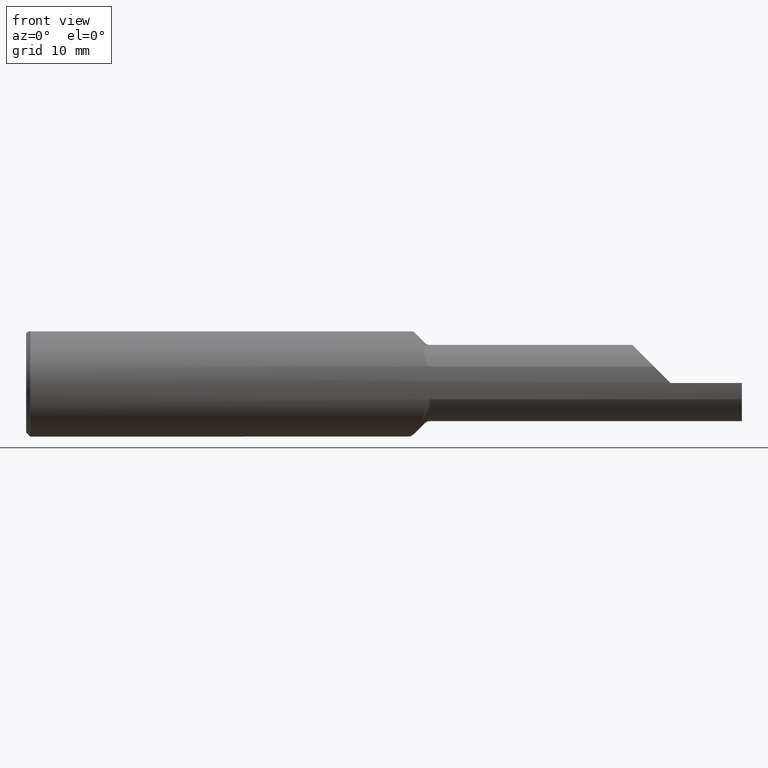
[diagram: clean part render]
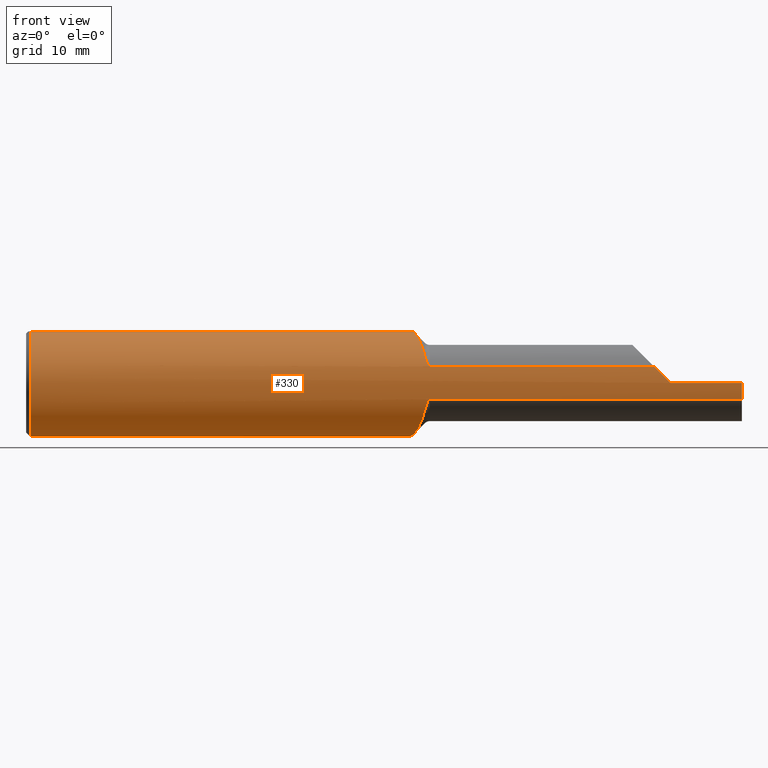
[diagram: same view with one face highlighted and labeled with its STEP entity id]
A machine part, front view. The second image highlights one B-rep face of the part: STEP entity #330.
In plain terms, the highlighted cylindrical surface (partial cylindrical patch) has radius 4.7587 mm, axis along (-1, -0, -0).
Its self-contained STEP definition (entity closure, byte-faithful):
#3 = CARTESIAN_POINT ( 'NONE',  ( 2.230726762412658548, -0.1872820046412290718, 0.01992323758734154335 ) ) ;
#7 = DIRECTION ( 'NONE',  ( -1.000000000000000000, -0.000000000000000000, -0.000000000000000000 ) ) ;
#12 = DIRECTION ( 'NONE',  ( 1.000000000000000000, 0.000000000000000000, 0.000000000000000000 ) ) ;
#14 = CARTESIAN_POINT ( 'NONE',  ( 1.290339301653355086, 0.1746239680236502112, -0.06904456622799003129 ) ) ;
#19 = CARTESIAN_POINT ( 'NONE',  ( 1.889999999999999680, -0.1783697086546703892, -0.05730854678359931925 ) ) ;
#23 = CARTESIAN_POINT ( 'NONE',  ( 2.500000000000000000, 0.000000000000000000, 0.000000000000000000 ) ) ;
#27 = ORIENTED_EDGE ( 'NONE', *, *, #675, .F. ) ;
#28 = EDGE_CURVE ( 'NONE', #179, #42, #1054, .T. ) ;
#32 = CARTESIAN_POINT ( 'NONE',  ( 1.315888065801316120, 0.07390163537251745463, 0.1726011362085435874 ) ) ;
#37 = CARTESIAN_POINT ( 'NONE',  ( 2.250000000000000000, -0.1873499999999999610, -6.429183357567478880E-17 ) ) ;
#42 = VERTEX_POINT ( 'NONE', #381 ) ;
#52 = B_SPLINE_CURVE_WITH_KNOTS ( 'NONE', 3,
 ( #636, #362, #375, #124, #869, #628, #117, #975, #624, #530 ),
 .UNSPECIFIED., .F., .F.,
 ( 4, 2, 2, 2, 4 ),
 ( 0.008839285664186636790, 0.009723419508071005912, 0.01060755335195537330, 0.01149168719583974069, 0.01237582103972410981 ),
 .UNSPECIFIED. ) ;
#54 = CARTESIAN_POINT ( 'NONE',  ( 1.352489247483494417, -0.05073361804563106953, 0.1803500000000000381 ) ) ;
#60 = DIRECTION ( 'NONE',  ( 0.000000000000000000, 0.000000000000000000, -1.000000000000000000 ) ) ;
#72 = DIRECTION ( 'NONE',  ( -1.000000000000000000, -0.000000000000000000, -0.000000000000000000 ) ) ;
#79 = CARTESIAN_POINT ( 'NONE',  ( 0.01500000000000079568, 0.05073361804563106953, 0.1803500000000000381 ) ) ;
#81 = CARTESIAN_POINT ( 'NONE',  ( 0.01500000000000079568, 0.000000000000000000, -0.1873499999999999888 ) ) ;
#82 = ORIENTED_EDGE ( 'NONE', *, *, #721, .F. ) ;
#85 = CARTESIAN_POINT ( 'NONE',  ( 1.403568594541375392, -0.1762593147278524730, 0.06352779236237585114 ) ) ;
#87 = CARTESIAN_POINT ( 'NONE',  ( 2.193341453216400616, -0.1783697086546704724, 0.05730854678359917354 ) ) ;
#90 = ORIENTED_EDGE ( 'NONE', *, *, #214, .T. ) ;
#91 = CARTESIAN_POINT ( 'NONE',  ( 1.409353365409087733, -0.1783697086546704169, 0.05730854678359929844 ) ) ;
#92 = CARTESIAN_POINT ( 'NONE',  ( 2.500000000000000000, 0.000000000000000000, 0.000000000000000000 ) ) ;
#97 = DIRECTION ( 'NONE',  ( 0.000000000000000000, 0.000000000000000000, 1.000000000000000000 ) ) ;
#103 = CARTESIAN_POINT ( 'NONE',  ( 1.287801414367354846, 0.1852400666705823484, 0.03079028734492997646 ) ) ;
#105 = AXIS2_PLACEMENT_3D ( 'NONE', #23, #12, #345 ) ;
#117 = CARTESIAN_POINT ( 'NONE',  ( 1.368767343164416062, -0.09892104215541590306, -0.1594977428790702589 ) ) ;
#124 = CARTESIAN_POINT ( 'NONE',  ( 1.381727261142595697, -0.1339314736004380280, -0.1314911332688375734 ) ) ;
#128 = CARTESIAN_POINT ( 'NONE',  ( 2.250000000000000000, -0.1873488724278853934, 0.0006500000000000633960 ) ) ;
#137 = CIRCLE ( 'NONE', #576, 0.1873499999999999888 ) ;
#145 = CARTESIAN_POINT ( 'NONE',  ( 1.406263810976655870, -0.1776167352753859063, -0.05960650000845370278 ) ) ;
#155 = CARTESIAN_POINT ( 'NONE',  ( 1.399768993697486419, -0.1730593490829001324, -0.07186319716290831550 ) ) ;
#167 = VERTEX_POINT ( 'NONE', #994 ) ;
#173 = EDGE_CURVE ( 'NONE', #279, #583, #137, .T. ) ;
#174 = AXIS2_PLACEMENT_3D ( 'NONE', #234, #1058, #661 ) ;
#176 = VECTOR ( 'NONE', #72, 39.37007874015748143 ) ;
#179 = VERTEX_POINT ( 'NONE', #990 ) ;
#181 = CARTESIAN_POINT ( 'NONE',  ( 1.307730347949919159, 0.1048826378083086847, -0.1553640687897693551 ) ) ;
#186 = DIRECTION ( 'NONE',  ( -1.000000000000000000, -0.000000000000000000, -0.000000000000000000 ) ) ;
#187 = CARTESIAN_POINT ( 'NONE',  ( 1.287233112653665135, 0.1876308245808173403, -0.007313932636929070669 ) ) ;
#192 = FACE_OUTER_BOUND ( 'NONE', #987, .T. ) ;
#199 = ORIENTED_EDGE ( 'NONE', *, *, #418, .F. ) ;
#210 = ORIENTED_EDGE ( 'NONE', *, *, #239, .T. ) ;
#214 = EDGE_CURVE ( 'NONE', #583, #1080, #662, .T. ) ;
#216 = ORIENTED_EDGE ( 'NONE', *, *, #28, .F. ) ;
#222 = CARTESIAN_POINT ( 'NONE',  ( 1.390249137328436246, -0.1553798969595271695, 0.1053022019421094302 ) ) ;
#230 = CARTESIAN_POINT ( 'NONE',  ( 1.378598829545118809, -0.1257548260562135756, 0.1393274407047325469 ) ) ;
#233 = CARTESIAN_POINT ( 'NONE',  ( 1.392677669529665208, -0.1612201248618108929, -0.09543633395904414785 ) ) ;
#234 = CARTESIAN_POINT ( 'NONE',  ( 2.250000000000000000, 0.000000000000000000, 0.000000000000000000 ) ) ;
#235 = DIRECTION ( 'NONE',  ( 0.000000000000000000, 0.000000000000000000, -1.000000000000000000 ) ) ;
#239 = EDGE_CURVE ( 'NONE', #414, #831, #322, .T. ) ;
#240 = DIRECTION ( 'NONE',  ( -1.000000000000000000, -0.000000000000000000, -0.000000000000000000 ) ) ;
#249 = CARTESIAN_POINT ( 'NONE',  ( 2.500000000000000000, -0.05073361804563106953, 0.1803500000000000381 ) ) ;
#253 = CARTESIAN_POINT ( 'NONE',  ( 1.354968261256594309, -0.05834999999999986725, -0.1780317387434049992 ) ) ;
#254 = CARTESIAN_POINT ( 'NONE',  ( 1.329350153915702659, 0.02533118765943571590, -0.1860229881109675409 ) ) ;
#259 = CARTESIAN_POINT ( 'NONE',  ( 1.354968261256594309, -0.05834999999999986725, -0.1780317387434049992 ) ) ;
#263 = CARTESIAN_POINT ( 'NONE',  ( 1.325940143936352289, 0.03734480488786587338, -0.1840042851911080080 ) ) ;
#269 = CARTESIAN_POINT ( 'NONE',  ( 2.500000000000000000, -0.1783697086546704169, -0.05730854678359924986 ) ) ;
#277 = CIRCLE ( 'NONE', #105, 0.1873499999999999888 ) ;
#279 = VERTEX_POINT ( 'NONE', #81 ) ;
#291 = VECTOR ( 'NONE', #878, 39.37007874015748143 ) ;
#304 = CARTESIAN_POINT ( 'NONE',  ( 1.403599855037234168, -0.1762798456443805117, -0.06347090199729087112 ) ) ;
#312 = CARTESIAN_POINT ( 'NONE',  ( 1.387505379083927126, -0.1486247539658122341, 0.1146180010495325557 ) ) ;
#316 = CARTESIAN_POINT ( 'NONE',  ( 1.358450646806901307, -0.06897510976000142957, 0.1745493531930979170 ) ) ;
#322 = LINE ( 'NONE', #249, #945 ) ;
#324 = ORIENTED_EDGE ( 'NONE', *, *, #173, .T. ) ;
#330 = ADVANCED_FACE ( 'NONE', ( #192 ), #1010, .T. ) ;
#336 = EDGE_CURVE ( 'NONE', #845, #42, #547, .T. ) ;
#339 = ORIENTED_EDGE ( 'NONE', *, *, #623, .T. ) ;
#340 = CARTESIAN_POINT ( 'NONE',  ( 1.408430780961237083, -0.1782286057343101804, 0.05774920339049817442 ) ) ;
#345 = DIRECTION ( 'NONE',  ( 0.000000000000000000, 0.000000000000000000, -1.000000000000000000 ) ) ;
#347 = CARTESIAN_POINT ( 'NONE',  ( 1.288954375347812320, 0.1804053881614880450, -0.05093214486733163571 ) ) ;
#355 = VERTEX_POINT ( 'NONE', #942 ) ;
#360 = VERTEX_POINT ( 'NONE', #269 ) ;
#361 = CARTESIAN_POINT ( 'NONE',  ( 1.354968261256594309, -0.05834999999999988807, 0.1780317387434050269 ) ) ;
#362 = CARTESIAN_POINT ( 'NONE',  ( 1.390253514619541386, -0.1553904236379950454, -0.1052844192764661041 ) ) ;
#368 = B_SPLINE_CURVE_WITH_KNOTS ( 'NONE', 3,
 ( #848, #91, #340, #916, #1015, #679, #85, #514, #591, #500, #766, #442 ),
 .UNSPECIFIED., .F., .F.,
 ( 4, 2, 2, 2, 2, 4 ),
 ( 0.000000000000000000, 7.502229733565869956E-05, 0.0001500445946713173991, 0.0003000891893426346356, 0.0006001783786852699218, 0.001200356757370535290 ),
 .UNSPECIFIED. ) ;
#375 = CARTESIAN_POINT ( 'NONE',  ( 1.387558038309074648, -0.1487564718944882070, -0.1144511678342008121 ) ) ;
#381 = CARTESIAN_POINT ( 'NONE',  ( 2.193341453216400616, -0.1783697086546704724, 0.05730854678359917354 ) ) ;
#387 = EDGE_CURVE ( 'NONE', #649, #1080, #471, .T. ) ;
#389 = CARTESIAN_POINT ( 'NONE',  ( 1.889999999999999680, -0.1783697086546703892, 0.05730854678359931925 ) ) ;
#400 = ORIENTED_EDGE ( 'NONE', *, *, #958, .F. ) ;
#406 = B_SPLINE_CURVE_WITH_KNOTS ( 'NONE', 3,
 ( #54, #729, #1070, #640 ),
 .UNSPECIFIED., .F., .F.,
 ( 4, 4 ),
 ( 7.627425471845128801E-07, 0.0002102370372012444177 ),
 .UNSPECIFIED. ) ;
#408 = CARTESIAN_POINT ( 'NONE',  ( 0.01500000000000079568, 0.000000000000000000, 0.000000000000000000 ) ) ;
#414 = VERTEX_POINT ( 'NONE', #548 ) ;
#418 = EDGE_CURVE ( 'NONE', #355, #649, #52, .T. ) ;
#424 = CARTESIAN_POINT ( 'NONE',  ( 1.300366864174358206, 0.1337561031483592844, -0.1317747899903142506 ) ) ;
#430 = CARTESIAN_POINT ( 'NONE',  ( 1.316243151538837974, 0.07258185416455241457, -0.1731530736261578662 ) ) ;
#438 = CARTESIAN_POINT ( 'NONE',  ( 1.288393214463352088, 0.1827501551820268078, 0.04314473373083425878 ) ) ;
#442 = CARTESIAN_POINT ( 'NONE',  ( 1.392677669529663431, -0.1612201248618146954, 0.09543633395903719507 ) ) ;
#443 = CARTESIAN_POINT ( 'NONE',  ( 2.250000000000000000, -0.1873488724278853934, 0.0006500000000000633960 ) ) ;
#470 = CARTESIAN_POINT ( 'NONE',  ( 1.396169724070546181, -0.1685762960924687970, -0.08208163340012655795 ) ) ;
#471 = B_SPLINE_CURVE_WITH_KNOTS ( 'NONE', 3,
 ( #259, #674, #1017, #931, #1005, #254, #263, #592, #430, #767, #923, #181, #510, #849, #424, #761, #515, #519, #14, #347, #686, #603, #936, #187, #857, #103, #438, #641, #969, #791, #803, #953, #1041, #1048, #720, #32, #700, #540 ),
 .UNSPECIFIED., .F., .F.,
 ( 4, 2, 2, 2, 2, 2, 2, 2, 2, 2, 2, 2, 2, 2, 2, 2, 2, 2, 4 ),
 ( 0.01237582103972410981, 0.01333573452915168094, 0.01429564801857925206, 0.01525556150800682492, 0.01621547499743439605, 0.01669543174214817988, 0.01717538848686196717, 0.01813530197628954177, 0.01909521546571711290, 0.02005512895514468749, 0.02053508569985847132, 0.02101504244457225862, 0.02197495593399983321, 0.02293486942342740434, 0.02389478291285497547, 0.02485469640228255006, 0.02581460989171012466, 0.02677452338113769925, 0.02773443687056527038 ),
 .UNSPECIFIED. ) ;
#476 = CARTESIAN_POINT ( 'NONE',  ( 1.408448095044418702, -0.1782309609829301200, -0.05774179208042248129 ) ) ;
#483 = B_SPLINE_CURVE_WITH_KNOTS ( 'NONE', 3,
 ( #741, #316, #899, #809, #656, #230, #667, #312, #222, #1081 ),
 .UNSPECIFIED., .F., .F.,
 ( 4, 2, 2, 2, 4 ),
 ( 0.0002102370372012444177, 0.001095323943326034950, 0.001980410849450825374, 0.002865497755575616232, 0.003750584661700406656 ),
 .UNSPECIFIED. ) ;
#485 = VECTOR ( 'NONE', #1059, 39.37007874015748143 ) ;
#487 = ORIENTED_EDGE ( 'NONE', *, *, #536, .T. ) ;
#488 = LINE ( 'NONE', #650, #176 ) ;
#500 = CARTESIAN_POINT ( 'NONE',  ( 1.396159917231947656, -0.1685583276048898682, 0.08211736450972877133 ) ) ;
#510 = CARTESIAN_POINT ( 'NONE',  ( 1.306401947506066863, 0.1100286960033595857, -0.1517643969169449047 ) ) ;
#514 = CARTESIAN_POINT ( 'NONE',  ( 1.401070010791237497, -0.1744205134096490084, 0.06848301048429149274 ) ) ;
#515 = CARTESIAN_POINT ( 'NONE',  ( 1.294523128465643769, 0.1573629312742697017, -0.1024417037855124557 ) ) ;
#519 = CARTESIAN_POINT ( 'NONE',  ( 1.291543747921855667, 0.1696157454200301062, -0.08054746252562343389 ) ) ;
#530 = CARTESIAN_POINT ( 'NONE',  ( 1.354968261256594309, -0.05834999999999986725, -0.1780317387434049992 ) ) ;
#536 = EDGE_CURVE ( 'NONE', #897, #845, #804, .T. ) ;
#540 = CARTESIAN_POINT ( 'NONE',  ( 1.322226761124839056, 0.05073361804563114585, 0.1803500000000000381 ) ) ;
#545 = ORIENTED_EDGE ( 'NONE', *, *, #971, .T. ) ;
#546 = CARTESIAN_POINT ( 'NONE',  ( 0.01499999999999942525, -0.05073361804563293609, 0.1803500000000000381 ) ) ;
#547 =( BOUNDED_CURVE ( )  B_SPLINE_CURVE ( 3, ( #443, #3, #775, #87 ),
 .UNSPECIFIED., .F., .F. ) 
 B_SPLINE_CURVE_WITH_KNOTS ( ( 4, 4 ),
 ( 4.715858429565467524, 5.023262387692848385 ),
 .UNSPECIFIED. ) 
 CURVE ( )  GEOMETRIC_REPRESENTATION_ITEM ( )  RATIONAL_B_SPLINE_CURVE ( ( 1.000000000000000000, 0.9921407246595839169, 0.9921407246595839169, 1.000000000000000000 ) ) 
 REPRESENTATION_ITEM ( '' )  );
#548 = CARTESIAN_POINT ( 'NONE',  ( 1.352489247483494417, -0.05073361804563106953, 0.1803500000000000381 ) ) ;
#557 = CARTESIAN_POINT ( 'NONE',  ( 1.409362302432487724, -0.1783697086547828548, -0.05730854678350853076 ) ) ;
#572 = ORIENTED_EDGE ( 'NONE', *, *, #336, .T. ) ;
#573 = CARTESIAN_POINT ( 'NONE',  ( 1.406911505120929329, -0.1778535538483544953, -0.05889400129952073598 ) ) ;
#576 = AXIS2_PLACEMENT_3D ( 'NONE', #408, #986, #235 ) ;
#583 = VERTEX_POINT ( 'NONE', #79 ) ;
#586 = CARTESIAN_POINT ( 'NONE',  ( 2.500000000000000000, 0.05073361804563106953, 0.1803500000000000381 ) ) ;
#589 = EDGE_CURVE ( 'NONE', #902, #665, #483, .T. ) ;
#591 = CARTESIAN_POINT ( 'NONE',  ( 1.399748379481698946, -0.1730365193890565090, 0.07191781888006555656 ) ) ;
#592 = CARTESIAN_POINT ( 'NONE',  ( 1.319337034764406891, 0.06115010668878919503, -0.1775186634490950044 ) ) ;
#603 = CARTESIAN_POINT ( 'NONE',  ( 1.287942788268092720, 0.1846460632819053871, -0.03234117797913944187 ) ) ;
#614 = VECTOR ( 'NONE', #186, 39.37007874015748143 ) ;
#623 = EDGE_CURVE ( 'NONE', #831, #279, #732, .T. ) ;
#624 = CARTESIAN_POINT ( 'NONE',  ( 1.358423102835126128, -0.06889107032234724481, -0.1745768971648735401 ) ) ;
#628 = CARTESIAN_POINT ( 'NONE',  ( 1.372103263110220572, -0.1082043198593513472, -0.1533523741457448464 ) ) ;
#630 = AXIS2_PLACEMENT_3D ( 'NONE', #92, #7, #97 ) ;
#636 = CARTESIAN_POINT ( 'NONE',  ( 1.392677669529665208, -0.1612201248618108929, -0.09543633395904414785 ) ) ;
#640 = CARTESIAN_POINT ( 'NONE',  ( 1.354968261256594309, -0.05834999999999988807, 0.1780317387434050269 ) ) ;
#641 = CARTESIAN_POINT ( 'NONE',  ( 1.290172451185787938, 0.1753186121875665304, 0.06724932333031376219 ) ) ;
#644 = CARTESIAN_POINT ( 'NONE',  ( 1.410355339059326862, -0.1783697086546703892, -0.05730854678359931925 ) ) ;
#649 = VERTEX_POINT ( 'NONE', #253 ) ;
#650 = CARTESIAN_POINT ( 'NONE',  ( 2.500000000000000000, -0.1873499999999999888, -6.429183357567480113E-17 ) ) ;
#651 = EDGE_CURVE ( 'NONE', #179, #665, #368, .T. ) ;
#655 = CARTESIAN_POINT ( 'NONE',  ( 2.500000000000000000, -0.1873499999999998222, -6.429183357567480113E-17 ) ) ;
#656 = CARTESIAN_POINT ( 'NONE',  ( 1.372098171548489898, -0.1081911845720503612, 0.1533658358000758448 ) ) ;
#661 = DIRECTION ( 'NONE',  ( 0.000000000000000000, 0.000000000000000000, 1.000000000000000000 ) ) ;
#662 = LINE ( 'NONE', #586, #485 ) ;
#665 = VERTEX_POINT ( 'NONE', #851 ) ;
#667 = CARTESIAN_POINT ( 'NONE',  ( 1.381692117238095818, -0.1338399153164697708, 0.1315807004239947509 ) ) ;
#674 = CARTESIAN_POINT ( 'NONE',  ( 1.351217303120552771, -0.04690544817629503649, -0.1817826968794463982 ) ) ;
#675 = EDGE_CURVE ( 'NONE', #360, #167, #921, .T. ) ;
#679 = CARTESIAN_POINT ( 'NONE',  ( 1.404482436652325861, -0.1768381092552934464, 0.06189371971083553609 ) ) ;
#686 = CARTESIAN_POINT ( 'NONE',  ( 1.288563873827742290, 0.1820409455122641851, -0.04473493752744751861 ) ) ;
#700 = CARTESIAN_POINT ( 'NONE',  ( 1.318968547943675462, 0.06250301213542808210, 0.1770391935437744813 ) ) ;
#720 = CARTESIAN_POINT ( 'NONE',  ( 1.310048160486880109, 0.09592332149754155546, 0.1614042140840566686 ) ) ;
#721 = EDGE_CURVE ( 'NONE', #955, #360, #277, .T. ) ;
#724 = CARTESIAN_POINT ( 'NONE',  ( 1.404519358739342083, -0.1768576582156871635, -0.06183736089970501976 ) ) ;
#725 = CARTESIAN_POINT ( 'NONE',  ( 0.01500000000000079568, 0.000000000000000000, 0.000000000000000000 ) ) ;
#729 = CARTESIAN_POINT ( 'NONE',  ( 1.353317762031589933, -0.05329669918612122553, 0.1796289887463178025 ) ) ;
#732 = CIRCLE ( 'NONE', #960, 0.1873499999999999888 ) ;
#741 = CARTESIAN_POINT ( 'NONE',  ( 1.354968261256594309, -0.05834999999999988807, 0.1780317387434050269 ) ) ;
#761 = CARTESIAN_POINT ( 'NONE',  ( 1.296320311736754549, 0.1500294446420622763, -0.1129002043701441277 ) ) ;
#766 = CARTESIAN_POINT ( 'NONE',  ( 1.394298152198937712, -0.1651171240844258037, 0.08885315253124444201 ) ) ;
#767 = CARTESIAN_POINT ( 'NONE',  ( 1.311874062265818930, 0.08903011435619233305, -0.1649581271952395012 ) ) ;
#775 = CARTESIAN_POINT ( 'NONE',  ( 2.211690972638299613, -0.1842652404698978397, 0.03895902736170015618 ) ) ;
#788 = ORIENTED_EDGE ( 'NONE', *, *, #651, .T. ) ;
#791 = CARTESIAN_POINT ( 'NONE',  ( 1.294308147217179128, 0.1582425620373411057, 0.1010780435082064971 ) ) ;
#803 = CARTESIAN_POINT ( 'NONE',  ( 1.296040650611813838, 0.1511645985810752268, 0.1113904599852965777 ) ) ;
#804 = CIRCLE ( 'NONE', #174, 0.1873499999999999888 ) ;
#809 = CARTESIAN_POINT ( 'NONE',  ( 1.368703818231176150, -0.09874118849380597585, 0.1596050434607465263 ) ) ;
#815 = DIRECTION ( 'NONE',  ( 1.000000000000000000, -0.000000000000000000, -0.000000000000000000 ) ) ;
#831 = VERTEX_POINT ( 'NONE', #546 ) ;
#845 = VERTEX_POINT ( 'NONE', #128 ) ;
#847 = ORIENTED_EDGE ( 'NONE', *, *, #387, .F. ) ;
#848 = CARTESIAN_POINT ( 'NONE',  ( 1.410355339059326862, -0.1783697086546703892, 0.05730854678359931925 ) ) ;
#849 = CARTESIAN_POINT ( 'NONE',  ( 1.302626747636566273, 0.1247708322425329780, -0.1403109275308250803 ) ) ;
#851 = CARTESIAN_POINT ( 'NONE',  ( 1.392677669529663431, -0.1612201248618146954, 0.09543633395903719507 ) ) ;
#857 = CARTESIAN_POINT ( 'NONE',  ( 1.287216210840755215, 0.1877021456528152055, 0.005461557674737406269 ) ) ;
#869 = CARTESIAN_POINT ( 'NONE',  ( 1.378571360006486834, -0.1256812272418073306, -0.1393892198534538718 ) ) ;
#878 = DIRECTION ( 'NONE',  ( 1.000000000000000000, 0.000000000000000000, 0.000000000000000000 ) ) ;
#893 = CARTESIAN_POINT ( 'NONE',  ( 1.401088181464120508, -0.1744387181921877306, -0.06843700474515755638 ) ) ;
#897 = VERTEX_POINT ( 'NONE', #37 ) ;
#899 = CARTESIAN_POINT ( 'NONE',  ( 1.361895869629350386, -0.07917488098667764540, 0.1701614833739455712 ) ) ;
#902 = VERTEX_POINT ( 'NONE', #361 ) ;
#916 = CARTESIAN_POINT ( 'NONE',  ( 1.406875481135651862, -0.1778427423524751305, 0.05892677987795064826 ) ) ;
#921 = LINE ( 'NONE', #19, #614 ) ;
#923 = CARTESIAN_POINT ( 'NONE',  ( 1.310463333522016161, 0.09439550663752127591, -0.1619501463759349114 ) ) ;
#931 = CARTESIAN_POINT ( 'NONE',  ( 1.340038752404290934, -0.01100734393750733321, -0.1874215480002737189 ) ) ;
#936 = CARTESIAN_POINT ( 'NONE',  ( 1.287709081643609199, 0.1856286585800343836, -0.02610982525124922946 ) ) ;
#942 = CARTESIAN_POINT ( 'NONE',  ( 1.392677669529665208, -0.1612201248618108929, -0.09543633395904414785 ) ) ;
#945 = VECTOR ( 'NONE', #240, 39.37007874015748143 ) ;
#953 = CARTESIAN_POINT ( 'NONE',  ( 1.300080258543534928, 0.1348995831369803333, 0.1306165108605434888 ) ) ;
#955 = VERTEX_POINT ( 'NONE', #655 ) ;
#958 = EDGE_CURVE ( 'NONE', #414, #902, #406, .T. ) ;
#960 = AXIS2_PLACEMENT_3D ( 'NONE', #725, #815, #60 ) ;
#969 = CARTESIAN_POINT ( 'NONE',  ( 1.291376529822215291, 0.1703085496625235118, 0.07907260733930795982 ) ) ;
#971 = EDGE_CURVE ( 'NONE', #355, #167, #1046, .T. ) ;
#975 = CARTESIAN_POINT ( 'NONE',  ( 1.361924480952844352, -0.07925979411789353668, -0.1701257993398435919 ) ) ;
#986 = DIRECTION ( 'NONE',  ( 1.000000000000000000, -0.000000000000000000, -0.000000000000000000 ) ) ;
#987 = EDGE_LOOP ( 'NONE', ( #27, #82, #1022, #487, #572, #216, #788, #1056, #400, #210, #339, #324, #90, #847, #199, #545 ) ) ;
#990 = CARTESIAN_POINT ( 'NONE',  ( 1.410355339059326862, -0.1783697086546703892, 0.05730854678359931925 ) ) ;
#994 = CARTESIAN_POINT ( 'NONE',  ( 1.410355339059326862, -0.1783697086546703892, -0.05730854678359931925 ) ) ;
#1005 = CARTESIAN_POINT ( 'NONE',  ( 1.336382994110498768, 0.001209398411742444376, -0.1877358743806105124 ) ) ;
#1010 = CYLINDRICAL_SURFACE ( 'NONE', #630, 0.1873499999999999888 ) ;
#1015 = CARTESIAN_POINT ( 'NONE',  ( 1.406236883445896035, -0.1776066927686674179, 0.05963654009861615868 ) ) ;
#1016 = EDGE_CURVE ( 'NONE', #955, #897, #488, .T. ) ;
#1017 = CARTESIAN_POINT ( 'NONE',  ( 1.347483243306721867, -0.03515109766243804806, -0.1844245065291032493 ) ) ;
#1022 = ORIENTED_EDGE ( 'NONE', *, *, #1016, .T. ) ;
#1041 = CARTESIAN_POINT ( 'NONE',  ( 1.302344364721590209, 0.1258879061987052128, 0.1393028251938590589 ) ) ;
#1046 = B_SPLINE_CURVE_WITH_KNOTS ( 'NONE', 3,
 ( #233, #1063, #470, #155, #893, #304, #724, #145, #573, #476, #557, #644 ),
 .UNSPECIFIED., .F., .F.,
 ( 4, 2, 2, 2, 2, 4 ),
 ( 4.336808689942017736E-19, 0.0005951497663342975638, 0.0008927246495014458036, 0.001041512091085019598, 0.001115905811876799882, 0.001190299532668580382 ),
 .UNSPECIFIED. ) ;
#1048 = CARTESIAN_POINT ( 'NONE',  ( 1.307307602494414578, 0.1064794760884440333, 0.1546452818744087354 ) ) ;
#1054 = LINE ( 'NONE', #389, #291 ) ;
#1056 = ORIENTED_EDGE ( 'NONE', *, *, #589, .F. ) ;
#1058 = DIRECTION ( 'NONE',  ( -1.000000000000000000, -0.000000000000000000, -0.000000000000000000 ) ) ;
#1059 = DIRECTION ( 'NONE',  ( 1.000000000000000000, 0.000000000000000000, 0.000000000000000000 ) ) ;
#1063 = CARTESIAN_POINT ( 'NONE',  ( 1.394297910623150560, -0.1651165431336509837, -0.08885413392849998704 ) ) ;
#1070 = CARTESIAN_POINT ( 'NONE',  ( 1.354144082012933126, -0.05583534595055388017, 0.1788559179870659044 ) ) ;
#1078 = CARTESIAN_POINT ( 'NONE',  ( 1.322226761124839056, 0.05073361804563114585, 0.1803500000000000381 ) ) ;
#1080 = VERTEX_POINT ( 'NONE', #1078 ) ;
#1081 = CARTESIAN_POINT ( 'NONE',  ( 1.392677669529663431, -0.1612201248618146954, 0.09543633395903719507 ) ) ;